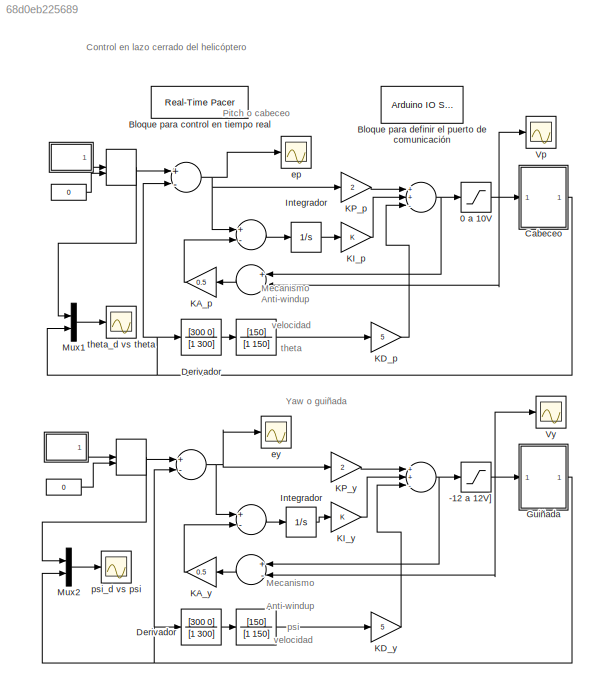
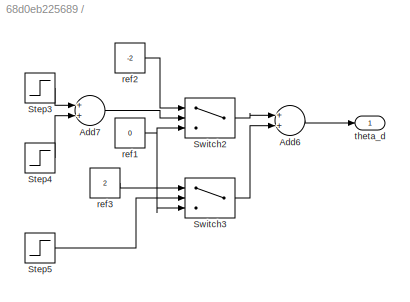
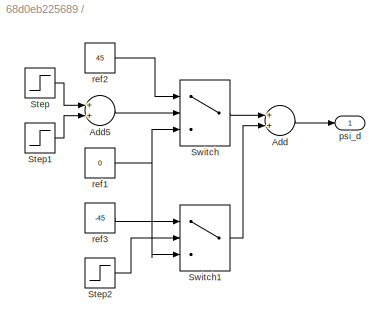
MODEL slx_68d0eb225689
KIND model
CONFIG AbsTol = auto
CONFIG FixedStep = auto
CONFIG MaxStep = auto
CONFIG MinStep = auto
CONFIG RelTol = 1e-3
CONFIG SampleTimeConstraint = Unconstrained
CONFIG Solver = ode45
CONFIG SolverMode = Auto
CONFIG SolverName = ode45
CONFIG StartTime = 0.0
CONFIG StopTime = 300
BLOCK [ManualSwitch]  
BLOCK [Sum]   
  InputSameDT = off
  Inputs = +-
  OutDataTypeStr = Inherit: Inherit via internal rule
  Ports = [2, 1]
  SaturateOnIntegerOverflow = off
BLOCK [SubSystem]      
  Ports = [0, 1]
  RequestExecContextInheritance = off
BLOCK [Constant]        
  Value = 0
BLOCK [Sum]               
  InputSameDT = off
  Inputs = ++-
  OutDataTypeStr = Inherit: Inherit via internal rule
  Ports = [3, 1]
  SaturateOnIntegerOverflow = off
BLOCK [ManualSwitch]                 
BLOCK [Sum]                    
  InputSameDT = off
  Inputs = +-
  OutDataTypeStr = Inherit: Inherit via internal rule
  Ports = [2, 1]
  SaturateOnIntegerOverflow = off
BLOCK [Sum]                        
  InputSameDT = off
  Inputs = +-
  OutDataTypeStr = Inherit: Inherit via internal rule
  Ports = [2, 1]
  SaturateOnIntegerOverflow = off
BLOCK [Sum]                           
  InputSameDT = off
  Inputs = +-
  OutDataTypeStr = Inherit: Inherit via internal rule
  Ports = [2, 1]
  SaturateOnIntegerOverflow = off
BLOCK [Sum]                                        
  InputSameDT = off
  Inputs = +-
  OutDataTypeStr = Inherit: Inherit via internal rule
  Ports = [2, 1]
  SaturateOnIntegerOverflow = off
BLOCK [Constant]                                            
  Value = 0
BLOCK [Sum]                                                       
  InputSameDT = off
  Inputs = +-
  OutDataTypeStr = Inherit: Inherit via internal rule
  Ports = [2, 1]
  SaturateOnIntegerOverflow = off
BLOCK [TransferFcn]                                                          
  Denominator = [1 150]
  Numerator = [150]
BLOCK [SubSystem]                                                            
  Ports = [0, 1]
  RequestExecContextInheritance = off
BLOCK [Sum]                                                             
  InputSameDT = off
  Inputs = ++-
  OutDataTypeStr = Inherit: Inherit via internal rule
  Ports = [3, 1]
  SaturateOnIntegerOverflow = off
BLOCK [TransferFcn]                                                                
  Denominator = [1 150]
  Numerator = [150]
BLOCK [Sum]                                                            /Add
  InputSameDT = off
  OutDataTypeStr = Inherit: Inherit via internal rule
  Ports = [2, 1]
  SaturateOnIntegerOverflow = off
BLOCK [Sum]                                                            /Add5
  InputSameDT = off
  OutDataTypeStr = Inherit: Inherit via internal rule
  Ports = [2, 1]
  SaturateOnIntegerOverflow = off
BLOCK [Step]                                                            /Step
  SampleTime = 0
  Time = 100
BLOCK [Step]                                                            /Step1
  After = -1
  SampleTime = 0
  Time = 200
BLOCK [Step]                                                            /Step2
  SampleTime = 0
  Time = 200
BLOCK [Switch]                                                            /Switch
  InputSameDT = off
  SaturateOnIntegerOverflow = off
  Threshold = 1
BLOCK [Switch]                                                            /Switch1
  InputSameDT = off
  SaturateOnIntegerOverflow = off
  Threshold = 1
BLOCK [Outport]                                                            /psi_d
  IconDisplay = Port number
BLOCK [Constant]                                                            /ref1
  Value = 0
BLOCK [Constant]                                                            /ref2
  Value = 45
BLOCK [Constant]                                                            /ref3
  Value = -45
BLOCK [TransferFcn]                        Derivador
  Denominator = [1 300]
  Numerator = [300 0]
BLOCK [TransferFcn]                       Derivador
  Denominator = [1 300]
  Numerator = [300 0]
BLOCK [Integrator]            Integrador          
  Ports = [1, 1]
BLOCK [Sum]      /Add6
  InputSameDT = off
  OutDataTypeStr = Inherit: Inherit via internal rule
  Ports = [2, 1]
  SaturateOnIntegerOverflow = off
BLOCK [Sum]      /Add7
  InputSameDT = off
  OutDataTypeStr = Inherit: Inherit via internal rule
  Ports = [2, 1]
  SaturateOnIntegerOverflow = off
BLOCK [Step]      /Step3
  SampleTime = 0
  Time = 75
BLOCK [Step]      /Step4
  After = -1
  SampleTime = 0
  Time = 150
BLOCK [Step]      /Step5
  SampleTime = 0
  Time = 150
BLOCK [Switch]      /Switch2
  InputSameDT = off
  SaturateOnIntegerOverflow = off
  Threshold = 1
BLOCK [Switch]      /Switch3
  InputSameDT = off
  SaturateOnIntegerOverflow = off
  Threshold = 1
BLOCK [Constant]      /ref1
  Value = 0
BLOCK [Constant]      /ref2
  Value = -2
BLOCK [Constant]      /ref3
  Value = 2
BLOCK [Outport]      /theta_d
  IconDisplay = Port number
BLOCK [Integrator]   Integrador 
  Ports = [1, 1]
BLOCK [Saturate] -12 a 12V]
  InputPortMap = u0
  LowerLimit = -12
  Ports = [1, 1]
  UpperLimit = 12
BLOCK [Saturate] 0 a 10V
  InputPortMap = u0
  LowerLimit = 0
  Ports = [1, 1]
  UpperLimit = 10
BLOCK [Reference] Bloque para control en tiempo real  REF=arduino_io_lib/Real-Time Pacer
  Ports = []
  SourceBlock = arduino_io_lib/Real-Time Pacer
  SourceType = RealTime_Pacer
  simTimePerRealTime = 1
BLOCK [Reference] Bloque para definir el puerto de comunicación  REF=arduino_io_lib/Arduino IO Setup
  Ports = []
  Priority = 3
  SourceBlock = arduino_io_lib/Arduino IO Setup
  SourceType = Arduino IO Setup
  arduinoVar = Temporary arduino variable: Arduino1
  comPort = COM11
  workspaceVarName = a
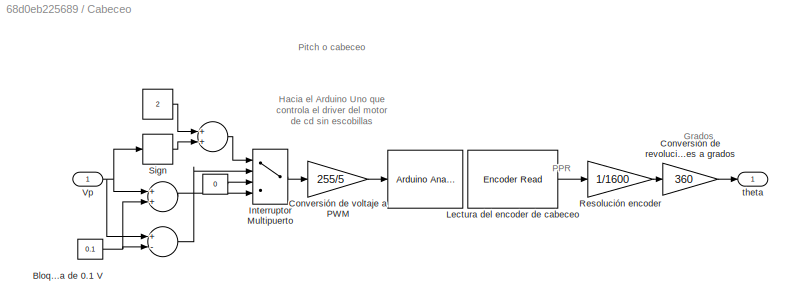
BLOCK [SubSystem] Cabeceo
  Ports = [1, 1]
  RequestExecContextInheritance = off
BLOCK [Sum] Cabeceo/ 
  InputSameDT = off
  OutDataTypeStr = Inherit: Inherit via internal rule
  Ports = [2, 1]
  SaturateOnIntegerOverflow = off
BLOCK [Constant] Cabeceo/  
  Value = 2
BLOCK [Sum] Cabeceo/        
  InputSameDT = off
  OutDataTypeStr = Inherit: Inherit via internal rule
  Ports = [2, 1]
  SaturateOnIntegerOverflow = off
BLOCK [Constant] Cabeceo/                       
  Value = 0
BLOCK [Sum] Cabeceo/                                             
  InputSameDT = off
  Inputs = +-
  OutDataTypeStr = Inherit: Inherit via internal rule
  Ports = [2, 1]
  SaturateOnIntegerOverflow = off
BLOCK [Reference] Cabeceo/                                                                             REF=arduino_io_lib/Arduino Analog Write
  Ports = [1]
  SourceBlock = arduino_io_lib/Arduino Analog Write
  SourceType = Arduino IO analog Write (PWM)
  T = 0.02
  arduinoPin = 7
  arduinoVar = Temporary arduino variable: Arduino1
BLOCK [Constant] Cabeceo/                                   Bloques para eliminar el voltaje de zona muerta de 0.1 V
  Value = 0.1
BLOCK [Gain] Cabeceo/Conversión de revoluciones a grados
  Gain = 360
  OutDataTypeStr = Inherit: Inherit via internal rule
  ParamDataTypeStr = Inherit: Inherit via internal rule
  SaturateOnIntegerOverflow = off
BLOCK [Gain] Cabeceo/Conversión de voltaje a PWM
  Gain = 255/5
  OutDataTypeStr = Inherit: Inherit via internal rule
  ParamDataTypeStr = Inherit: Inherit via internal rule
  SaturateOnIntegerOverflow = off
BLOCK [MultiPortSwitch] Cabeceo/Interruptor Multipuerto 
  InputSameDT = off
  Ports = [4, 1]
  SaturateOnIntegerOverflow = off
BLOCK [Reference] Cabeceo/Lectura del encoder de cabeceo  REF=arduino_io_lib/Encoder Read
  DbDl = 0
  Ports = [0, 1]
  SourceBlock = arduino_io_lib/Encoder Read
  SourceType = Arduino IO Encoder Read
  T = 0.02
  arduinoVar = Temporary arduino variable: Arduino1
  encNum = 1
  pinA = 18
  pinB = 19
BLOCK [Gain] Cabeceo/Resolución encoder
  Gain = 1/1600
  OutDataTypeStr = Inherit: Inherit via internal rule
  ParamDataTypeStr = Inherit: Inherit via internal rule
  SaturateOnIntegerOverflow = off
BLOCK [Signum] Cabeceo/Sign
  ZeroCross = off
BLOCK [Inport] Cabeceo/Vp
  IconDisplay = Port number
BLOCK [Outport] Cabeceo/theta
  IconDisplay = Port number
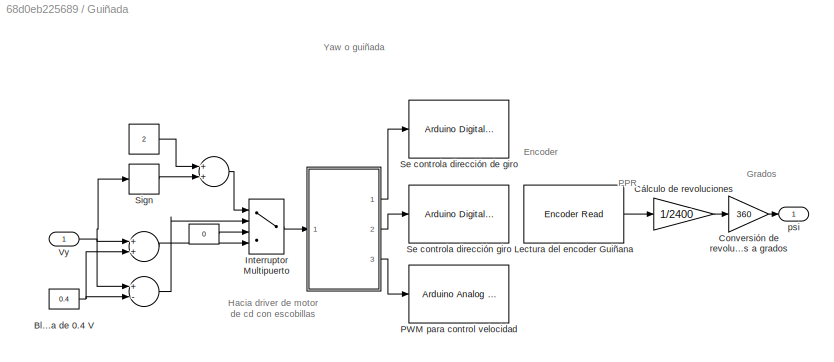
BLOCK [SubSystem] Guiñada
  Ports = [1, 1]
  RequestExecContextInheritance = off
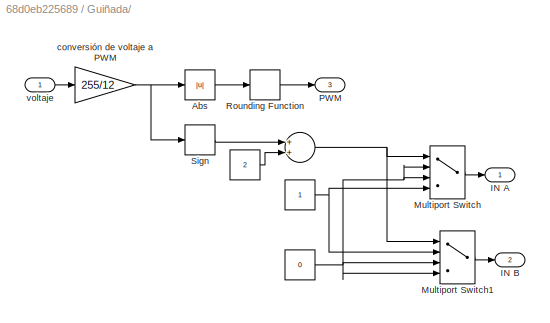
BLOCK [SubSystem] Guiñada/ 
  Ports = [1, 3]
  RequestExecContextInheritance = off
BLOCK [Constant] Guiñada/  
  Value = 2
BLOCK [Sum] Guiñada/   
  InputSameDT = off
  OutDataTypeStr = Inherit: Inherit via internal rule
  Ports = [2, 1]
  SaturateOnIntegerOverflow = off
BLOCK [Sum] Guiñada/    
  InputSameDT = off
  OutDataTypeStr = Inherit: Inherit via internal rule
  Ports = [2, 1]
  SaturateOnIntegerOverflow = off
BLOCK [Sum] Guiñada/        
  InputSameDT = off
  Inputs = +-
  OutDataTypeStr = Inherit: Inherit via internal rule
  Ports = [2, 1]
  SaturateOnIntegerOverflow = off
BLOCK [Constant] Guiñada/            
  Value = 0
BLOCK [Constant] Guiñada/                                       Bloques para eliminar el voltaje de zona muerta de 0.4 V
  Value = 0.4
BLOCK [Constant] Guiñada/ / 
  Value = 2
BLOCK [Sum] Guiñada/ /  
  InputSameDT = off
  OutDataTypeStr = Inherit: Inherit via internal rule
  Ports = [2, 1]
  SaturateOnIntegerOverflow = off
BLOCK [Constant] Guiñada/ /     
BLOCK [Constant] Guiñada/ /                         
  Value = 0
BLOCK [Abs] Guiñada/ /Abs
  SaturateOnIntegerOverflow = off
BLOCK [Outport] Guiñada/ /IN A
  IconDisplay = Port number
BLOCK [Outport] Guiñada/ /IN B
  IconDisplay = Port number
  Port = 2
BLOCK [MultiPortSwitch] Guiñada/ /Multiport Switch
  InputSameDT = off
  Ports = [4, 1]
  SaturateOnIntegerOverflow = off
BLOCK [MultiPortSwitch] Guiñada/ /Multiport Switch1
  InputSameDT = off
  Ports = [4, 1]
  SaturateOnIntegerOverflow = off
BLOCK [Outport] Guiñada/ /PWM
  IconDisplay = Port number
  Port = 3
BLOCK [Rounding] Guiñada/ /Rounding Function
BLOCK [Signum] Guiñada/ /Sign
BLOCK [Gain] Guiñada/ /conversión de voltaje a PWM
  Gain = 255/12
  OutDataTypeStr = Inherit: Inherit via internal rule
  ParamDataTypeStr = Inherit: Inherit via internal rule
  SaturateOnIntegerOverflow = off
BLOCK [Inport] Guiñada/ /voltaje
  IconDisplay = Port number
BLOCK [Gain] Guiñada/Conversión de revoluciones a grados
  Gain = 360
  OutDataTypeStr = Inherit: Inherit via internal rule
  ParamDataTypeStr = Inherit: Inherit via internal rule
  SaturateOnIntegerOverflow = off
BLOCK [Gain] Guiñada/Cálculo de revoluciones
  Gain = 1/2400
  OutDataTypeStr = Inherit: Inherit via internal rule
  ParamDataTypeStr = Inherit: Inherit via internal rule
  SaturateOnIntegerOverflow = off
BLOCK [MultiPortSwitch] Guiñada/Interruptor Multipuerto
  InputSameDT = off
  Ports = [4, 1]
  SaturateOnIntegerOverflow = off
BLOCK [Reference] Guiñada/Lectura del encoder Guiñana  REF=arduino_io_lib/Encoder Read
  DbDl = 0
  Ports = [0, 1]
  SourceBlock = arduino_io_lib/Encoder Read
  SourceType = Arduino IO Encoder Read
  T = 0.02
  arduinoVar = Temporary arduino variable: Arduino1
  encNum = 2
  pinA = 3
  pinB = 2
BLOCK [Reference] Guiñada/PWM para control velocidad   REF=arduino_io_lib/Arduino Analog Write
  Ports = [1]
  SourceBlock = arduino_io_lib/Arduino Analog Write
  SourceType = Arduino IO analog Write (PWM)
  T = 0.02
  arduinoPin = 10
  arduinoVar = Temporary arduino variable: Arduino1
BLOCK [Reference] Guiñada/Se controla dirección de giro   REF=arduino_io_lib/Arduino Digital Write
  Ports = [1]
  SourceBlock = arduino_io_lib/Arduino Digital Write
  SourceType = Arduino IO digital Write
  T = 0.02
  arduinoPin = 4
  arduinoVar = Temporary arduino variable: Arduino1
BLOCK [Reference] Guiñada/Se controla dirección giro  REF=arduino_io_lib/Arduino Digital Write
  Ports = [1]
  SourceBlock = arduino_io_lib/Arduino Digital Write
  SourceType = Arduino IO digital Write
  T = 0.02
  arduinoPin = 5
  arduinoVar = Temporary arduino variable: Arduino1
BLOCK [Signum] Guiñada/Sign
  ZeroCross = off
BLOCK [Inport] Guiñada/Vy
  IconDisplay = Port number
BLOCK [Outport] Guiñada/psi
  IconDisplay = Port number
BLOCK [Gain] KA_p
  Gain = 0.5
  OutDataTypeStr = Inherit: Inherit via internal rule
  ParamDataTypeStr = Inherit: Inherit via internal rule
  SaturateOnIntegerOverflow = off
BLOCK [Gain] KA_y
  Gain = 0.5
  OutDataTypeStr = Inherit: Inherit via internal rule
  ParamDataTypeStr = Inherit: Inherit via internal rule
  SaturateOnIntegerOverflow = off
BLOCK [Gain] KD_p
  Gain = 5
  OutDataTypeStr = Inherit: Inherit via internal rule
  ParamDataTypeStr = Inherit: Inherit via internal rule
  SaturateOnIntegerOverflow = off
BLOCK [Gain] KD_y
  Gain = 5
  OutDataTypeStr = Inherit: Inherit via internal rule
  ParamDataTypeStr = Inherit: Inherit via internal rule
  SaturateOnIntegerOverflow = off
BLOCK [Gain] KI_p
  OutDataTypeStr = Inherit: Inherit via internal rule
  ParamDataTypeStr = Inherit: Inherit via internal rule
  SaturateOnIntegerOverflow = off
BLOCK [Gain] KI_y
  OutDataTypeStr = Inherit: Inherit via internal rule
  ParamDataTypeStr = Inherit: Inherit via internal rule
  SaturateOnIntegerOverflow = off
BLOCK [Gain] KP_p
  Gain = 2
  OutDataTypeStr = Inherit: Inherit via internal rule
  ParamDataTypeStr = Inherit: Inherit via internal rule
  SaturateOnIntegerOverflow = off
BLOCK [Gain] KP_y
  Gain = 2
  OutDataTypeStr = Inherit: Inherit via internal rule
  ParamDataTypeStr = Inherit: Inherit via internal rule
  SaturateOnIntegerOverflow = off
BLOCK [Mux] Mux1
  DisplayOption = bar
  Inputs = 2
  Ports = [2, 1]
BLOCK [Mux] Mux2
  DisplayOption = bar
  Inputs = 2
  Ports = [2, 1]
BLOCK [Scope] Vp
  DataFormat = StructureWithTime
  Floating = off
  LimitDataPoints = off
  NumInputPorts = 1
  Ports = [1]
  SaveName = ScopeData6
  YMax = 3.33852
  YMin = -0.37095
BLOCK [Scope] Vy
  DataFormat = StructureWithTime
  Floating = off
  LimitDataPoints = off
  NumInputPorts = 1
  Ports = [1]
  SaveName = ScopeData3
  YMax = 0.77565
  YMin = -2.30841
BLOCK [Scope] ep
  DataFormat = StructureWithTime
  Floating = off
  LimitDataPoints = off
  NumInputPorts = 1
  Ports = [1]
  SaveName = ScopeData2
  YMax = 0.21266
  YMin = -0.14677
BLOCK [Scope] ey
  DataFormat = StructureWithTime
  Floating = off
  LimitDataPoints = off
  NumInputPorts = 1
  Ports = [1]
  SaveName = ScopeData1
  YMax = 20.175
  YMin = -19.575
BLOCK [Scope] psi_d vs psi
  DataFormat = StructureWithTime
  Floating = off
  LimitDataPoints = off
  NumInputPorts = 1
  Ports = [1]
  SaveName = ScopeData1
  YMax = 12.90937
  YMin = -12.68437
BLOCK [Scope] theta_d vs theta
  DataFormat = StructureWithTime
  Floating = off
  LimitDataPoints = off
  NumInputPorts = 1
  Ports = [1]
  SaveName = ScopeData2
  YMax = 12.90937
  YMin = -12.68437
ANNOTATION (root): Control en lazo cerrado del helicóptero
ANNOTATION (root): Pitch o cabeceo
ANNOTATION (root): Yaw o guiñada
ANNOTATION (root): Mecanismo Anti-windup
ANNOTATION (root): velocidad psi
ANNOTATION (root): velocidad theta
ANNOTATION Cabeceo: Grados
ANNOTATION Cabeceo: PPR
ANNOTATION Cabeceo: Pitch o cabeceo
ANNOTATION Cabeceo: Hacia el Arduino Uno que controla el driver del motor de cd sin escobillas
ANNOTATION Guiñada: Grados
ANNOTATION Guiñada: PPR
ANNOTATION Guiñada: Yaw o guiñada
ANNOTATION Guiñada: Hacia driver de motor de cd con escobillas
ANNOTATION Guiñada: Encoder
LINE                                                                :1 -> KD_p:1
NET                                                             :1 ->                                                       :1, -12 a 12V]:1
LINE                                                            /Add5:1 ->                                                            /Switch:2
LINE                                                            /Add:1 ->                                                            /psi_d:1
LINE                                                            /Step1:1 ->                                                            /Add5:2
LINE                                                            /Step2:1 ->                                                            /Switch1:2
LINE                                                            /Step:1 ->                                                            /Add5:1
LINE                                                            /Switch1:1 ->                                                            /Add:2
LINE                                                            /Switch:1 ->                                                            /Add:1
NET                                                            /ref1:1 ->                                                            /Switch1:3,                                                            /Switch:3
LINE                                                            /ref2:1 ->                                                            /Switch:1
LINE                                                            /ref3:1 ->                                                            /Switch1:1
LINE                                                            :1 ->                 :1
LINE                                                          :1 -> KD_y:1
LINE                                                       :1 -> KA_y:1
LINE                                            :1 ->                 :2
LINE                                        :1 -> KA_p:1
LINE                           :1 ->   Integrador :1
LINE                        :1 ->            Integrador          :1
LINE                        Derivador:1 ->                                                          :1
LINE                       Derivador:1 ->                                                                :1
NET                    :1 ->                           :1, KP_y:1, ey:1
NET                 :1 ->                    :1, Mux2:1
NET               :1 ->                                        :1, 0 a 10V:1
LINE            Integrador          :1 -> KI_p:1
LINE        :1 ->  :2
LINE      /Add6:1 ->      /theta_d:1
LINE      /Add7:1 ->      /Switch2:2
LINE      /Step3:1 ->      /Add7:1
LINE      /Step4:1 ->      /Add7:2
LINE      /Step5:1 ->      /Switch3:2
LINE      /Switch2:1 ->      /Add6:1
LINE      /Switch3:1 ->      /Add6:2
NET      /ref1:1 ->      /Switch2:3,      /Switch3:3
LINE      /ref2:1 ->      /Switch2:1
LINE      /ref3:1 ->      /Switch3:1
LINE      :1 ->  :1
NET   :1 ->                        :1, KP_p:1, ep:1
LINE   Integrador :1 -> KI_y:1
NET  :1 ->   :1, Mux1:1
NET -12 a 12V]:1 ->                                                       :2, Guiñada:1, Vy:1
NET 0 a 10V:1 ->                                        :2, Cabeceo:1, Vp:1
LINE Cabeceo/                                             :1 -> Cabeceo/Interruptor Multipuerto :2
NET Cabeceo/                                   Bloques para eliminar el voltaje de zona muerta de 0.1 V:1 -> Cabeceo/                                             :2, Cabeceo/ :2
LINE Cabeceo/                       :1 -> Cabeceo/Interruptor Multipuerto :3
LINE Cabeceo/        :1 -> Cabeceo/Interruptor Multipuerto :1
LINE Cabeceo/  :1 -> Cabeceo/        :1
LINE Cabeceo/ :1 -> Cabeceo/Interruptor Multipuerto :4
LINE Cabeceo/Conversión de revoluciones a grados:1 -> Cabeceo/theta:1
LINE Cabeceo/Conversión de voltaje a PWM:1 -> Cabeceo/                                                                           :1
LINE Cabeceo/Interruptor Multipuerto :1 -> Cabeceo/Conversión de voltaje a PWM:1
LINE Cabeceo/Lectura del encoder de cabeceo:1 -> Cabeceo/Resolución encoder:1
LINE Cabeceo/Resolución encoder:1 -> Cabeceo/Conversión de revoluciones a grados:1
LINE Cabeceo/Sign:1 -> Cabeceo/        :2
NET Cabeceo/Vp:1 -> Cabeceo/                                             :1, Cabeceo/ :1, Cabeceo/Sign:1
NET Cabeceo:1 ->                       Derivador:1,   :2, Mux1:2
NET Guiñada/                                       Bloques para eliminar el voltaje de zona muerta de 0.4 V:1 -> Guiñada/        :2, Guiñada/    :2
LINE Guiñada/            :1 -> Guiñada/Interruptor Multipuerto:3
LINE Guiñada/        :1 -> Guiñada/Interruptor Multipuerto:2
LINE Guiñada/    :1 -> Guiñada/Interruptor Multipuerto:4
LINE Guiñada/   :1 -> Guiñada/Interruptor Multipuerto:1
LINE Guiñada/  :1 -> Guiñada/   :1
NET Guiñada/ /                         :1 -> Guiñada/ /Multiport Switch1:3, Guiñada/ /Multiport Switch1:4, Guiñada/ /Multiport Switch:2, Guiñada/ /Multiport Switch:3
NET Guiñada/ /     :1 -> Guiñada/ /Multiport Switch1:2, Guiñada/ /Multiport Switch:4
NET Guiñada/ /  :1 -> Guiñada/ /Multiport Switch1:1, Guiñada/ /Multiport Switch:1
LINE Guiñada/ / :1 -> Guiñada/ /  :2
LINE Guiñada/ /Abs:1 -> Guiñada/ /Rounding Function:1
LINE Guiñada/ /Multiport Switch1:1 -> Guiñada/ /IN B:1
LINE Guiñada/ /Multiport Switch:1 -> Guiñada/ /IN A:1
LINE Guiñada/ /Rounding Function:1 -> Guiñada/ /PWM:1
LINE Guiñada/ /Sign:1 -> Guiñada/ /  :1
NET Guiñada/ /conversión de voltaje a PWM:1 -> Guiñada/ /Abs:1, Guiñada/ /Sign:1
LINE Guiñada/ /voltaje:1 -> Guiñada/ /conversión de voltaje a PWM:1
LINE Guiñada/ :1 -> Guiñada/Se controla dirección de giro :1
LINE Guiñada/ :2 -> Guiñada/Se controla dirección giro:1
LINE Guiñada/ :3 -> Guiñada/PWM para control velocidad :1
LINE Guiñada/Conversión de revoluciones a grados:1 -> Guiñada/psi:1
LINE Guiñada/Cálculo de revoluciones:1 -> Guiñada/Conversión de revoluciones a grados:1
LINE Guiñada/Interruptor Multipuerto:1 -> Guiñada/ :1
LINE Guiñada/Lectura del encoder Guiñana:1 -> Guiñada/Cálculo de revoluciones:1
LINE Guiñada/Sign:1 -> Guiñada/   :2
NET Guiñada/Vy:1 -> Guiñada/        :1, Guiñada/    :1, Guiñada/Sign:1
NET Guiñada:1 ->                        Derivador:1,                    :2, Mux2:2
LINE KA_p:1 ->                        :2
LINE KA_y:1 ->                           :2
LINE KD_p:1 ->               :3
LINE KD_y:1 ->                                                             :3
LINE KI_p:1 ->               :2
LINE KI_y:1 ->                                                             :2
LINE KP_p:1 ->               :1
LINE KP_y:1 ->                                                             :1
LINE Mux1:1 -> theta_d vs theta:1
LINE Mux2:1 -> psi_d vs psi:1
note: NET lines group one-source signal fan-out (src -> all destinations, sorted); 1:1 wires keep LINE
